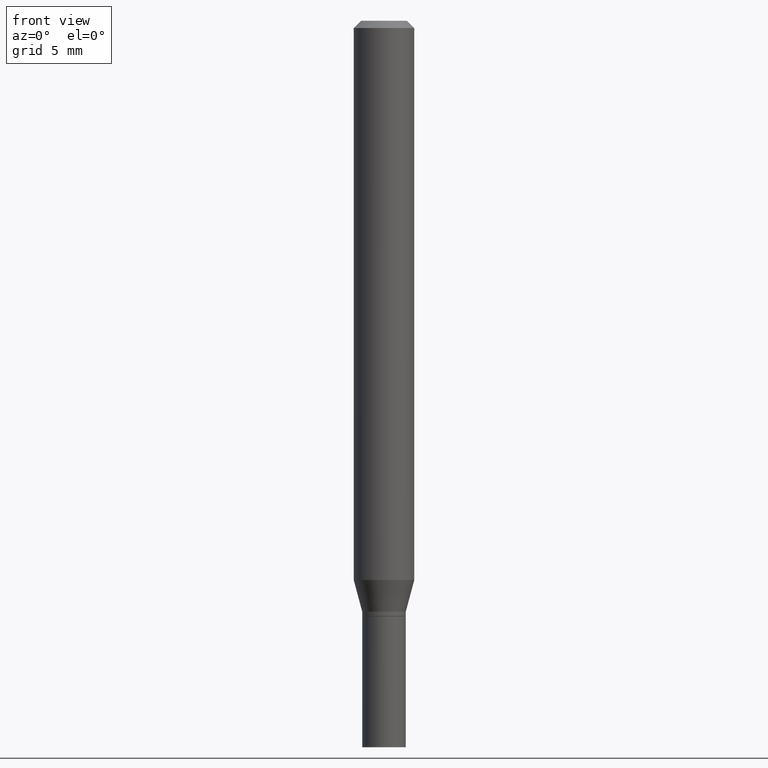
[diagram: clean part render]
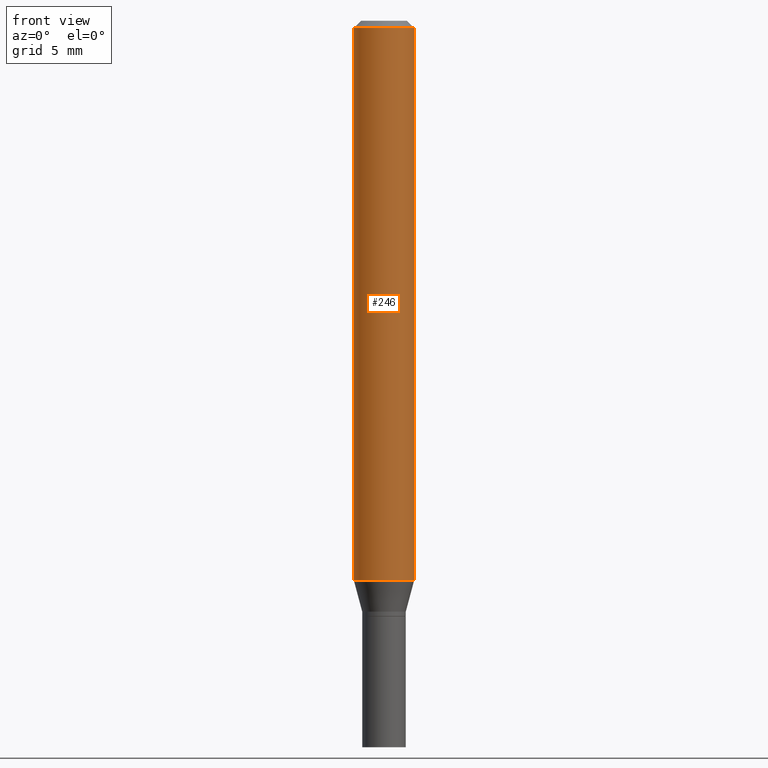
[diagram: same view with one face highlighted and labeled with its STEP entity id]
A machine part, front view. The second image highlights one B-rep face of the part: STEP entity #246.
In plain terms, the highlighted cylindrical surface (edge-blend (fillet) strip) has radius 1.5875 mm, axis along (-0, 0, 1).
Its self-contained STEP definition (entity closure, byte-faithful):
#24 = CARTESIAN_POINT ( 'NONE',  ( 0.06250000000000000000, -4.364351673553916694E-16, 3.047610484872459871E-30 ) ) ;
#38 = LINE ( 'NONE', #289, #76 ) ;
#53 = CARTESIAN_POINT ( 'NONE',  ( 3.668203209277705088E-31, -5.237222008264718399E-17, -0.01499999999999999944 ) ) ;
#73 = EDGE_CURVE ( 'NONE', #237, #311, #302, .T. ) ;
#76 = VECTOR ( 'NONE', #396, 39.37007874015748143 ) ;
#91 = ORIENTED_EDGE ( 'NONE', *, *, #256, .F. ) ;
#116 = DIRECTION ( 'NONE',  ( -2.445468806185136597E-29, 3.491481338843145583E-15, 1.000000000000000000 ) ) ;
#129 = CIRCLE ( 'NONE', #309, 0.06250000000000000000 ) ;
#132 = CYLINDRICAL_SURFACE ( 'NONE', #264, 0.06250000000000000000 ) ;
#137 = DIRECTION ( 'NONE',  ( -2.445468806185136597E-29, 3.491481338843145583E-15, 1.000000000000000000 ) ) ;
#147 = VERTEX_POINT ( 'NONE', #339 ) ;
#170 = AXIS2_PLACEMENT_3D ( 'NONE', #53, #137, #310 ) ;
#174 = EDGE_CURVE ( 'NONE', #185, #311, #349, .T. ) ;
#179 = DIRECTION ( 'NONE',  ( 1.000000000000000000, -6.982962677686270655E-15, 0.000000000000000000 ) ) ;
#185 = VERTEX_POINT ( 'NONE', #422 ) ;
#237 = VERTEX_POINT ( 'NONE', #305 ) ;
#246 = ADVANCED_FACE ( 'NONE', ( #452 ), #132, .T. ) ;
#247 = CARTESIAN_POINT ( 'NONE',  ( 2.823756201468233313E-29, -4.031575482759418834E-15, -1.154689110867545443 ) ) ;
#248 = EDGE_CURVE ( 'NONE', #147, #185, #129, .T. ) ;
#250 = DIRECTION ( 'NONE',  ( 1.000000000000000000, -6.982962677686266711E-15, 4.876176775795935793E-29 ) ) ;
#256 = EDGE_CURVE ( 'NONE', #147, #237, #38, .T. ) ;
#264 = AXIS2_PLACEMENT_3D ( 'NONE', #272, #116, #250 ) ;
#272 = CARTESIAN_POINT ( 'NONE',  ( 0.000000000000000000, 0.000000000000000000, 0.000000000000000000 ) ) ;
#277 = ORIENTED_EDGE ( 'NONE', *, *, #73, .F. ) ;
#283 = EDGE_LOOP ( 'NONE', ( #91, #423, #348, #277 ) ) ;
#289 = CARTESIAN_POINT ( 'NONE',  ( -0.06250000000000000000, 4.440892098500626162E-16, -3.074334431409316114E-30 ) ) ;
#302 = CIRCLE ( 'NONE', #170, 0.06250000000000000000 ) ;
#305 = CARTESIAN_POINT ( 'NONE',  ( -0.06250000000000000000, -1.597884641570970340E-15, -0.01499999999999999944 ) ) ;
#309 = AXIS2_PLACEMENT_3D ( 'NONE', #247, #364, #179 ) ;
#310 = DIRECTION ( 'NONE',  ( 1.000000000000000000, -6.982962677686266711E-15, 0.000000000000000000 ) ) ;
#311 = VERTEX_POINT ( 'NONE', #425 ) ;
#326 = VECTOR ( 'NONE', #457, 39.37007874015748143 ) ;
#339 = CARTESIAN_POINT ( 'NONE',  ( -0.06250000000000000000, -3.587486272909356218E-15, -1.154689110867545443 ) ) ;
#348 = ORIENTED_EDGE ( 'NONE', *, *, #174, .T. ) ;
#349 = LINE ( 'NONE', #24, #326 ) ;
#364 = DIRECTION ( 'NONE',  ( -2.445468806185136597E-29, 3.491481338843145583E-15, 1.000000000000000000 ) ) ;
#396 = DIRECTION ( 'NONE',  ( -2.445468806185136877E-29, 3.491481338843145188E-15, 1.000000000000000000 ) ) ;
#422 = CARTESIAN_POINT ( 'NONE',  ( 0.06250000000000000000, -4.468010650114809714E-15, -1.154689110867545443 ) ) ;
#423 = ORIENTED_EDGE ( 'NONE', *, *, #248, .T. ) ;
#425 = CARTESIAN_POINT ( 'NONE',  ( 0.06250000000000000000, -4.888073874380388472E-16, -0.01499999999999999944 ) ) ;
#452 = FACE_OUTER_BOUND ( 'NONE', #283, .T. ) ;
#457 = DIRECTION ( 'NONE',  ( -2.445468806185136877E-29, 3.491481338843145188E-15, 1.000000000000000000 ) ) ;